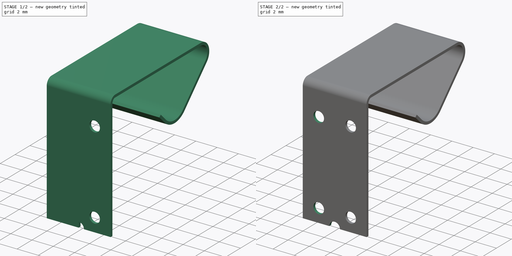
[diagram: build sequence overview — one tinted view per stage of 2, left to right]
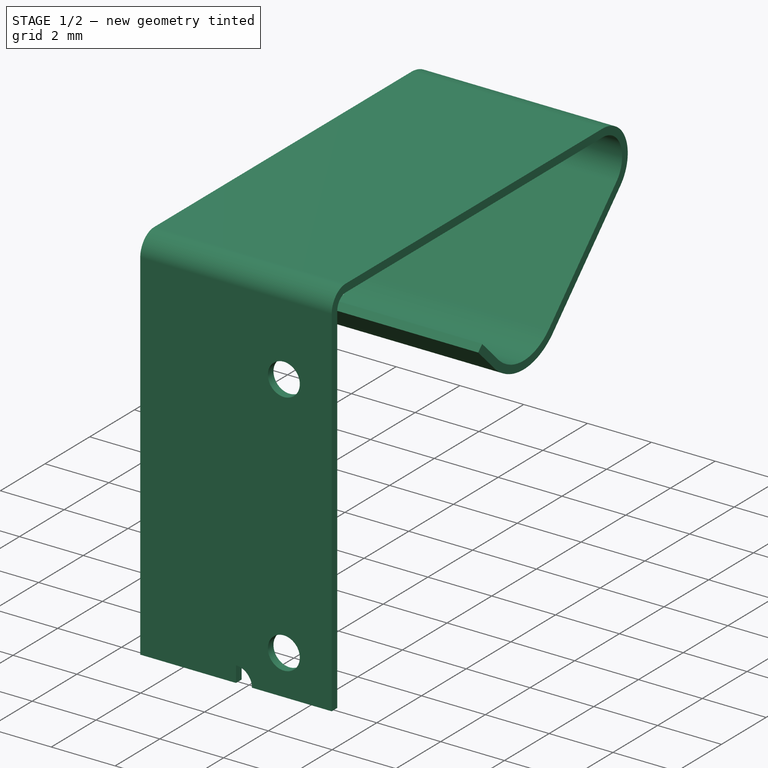
[diagram: stage 1 of 2 — iso view after this stage's code; geometry added in this stage tinted green]
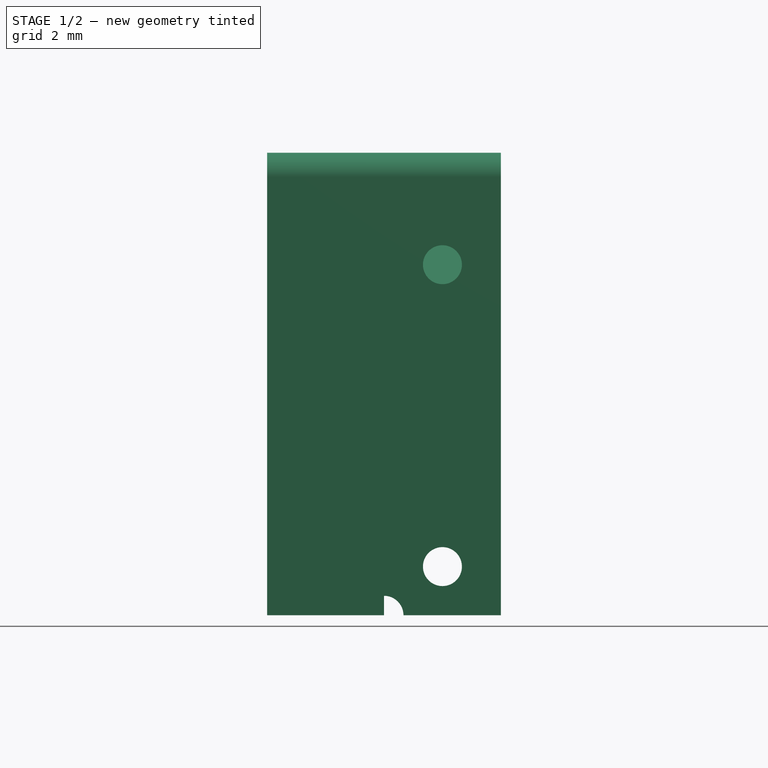
[diagram: stage 1 of 2 — front view after this stage's code; geometry added in this stage tinted green]
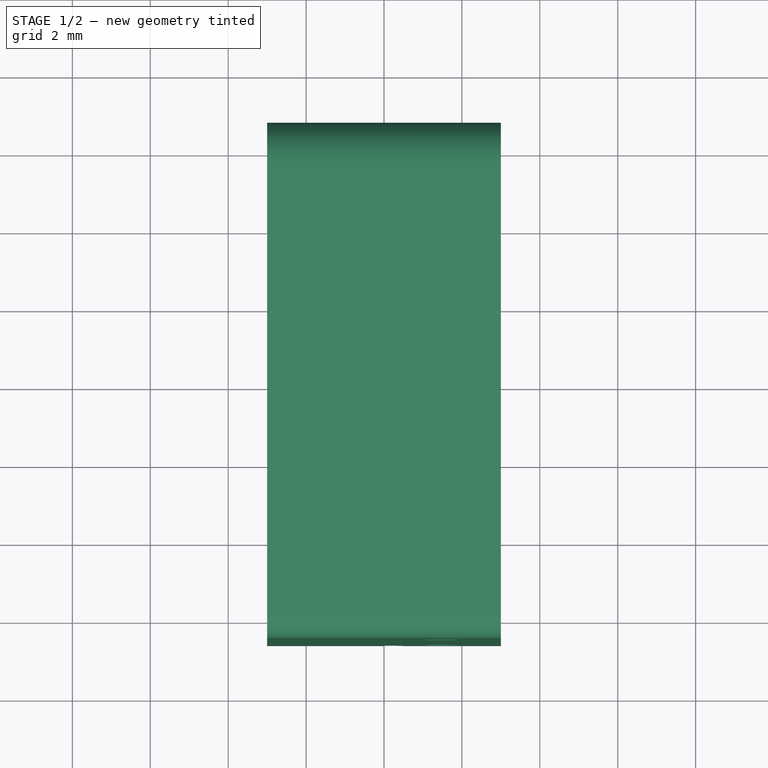
[diagram: stage 1 of 2 — top view after this stage's code; geometry added in this stage tinted green]
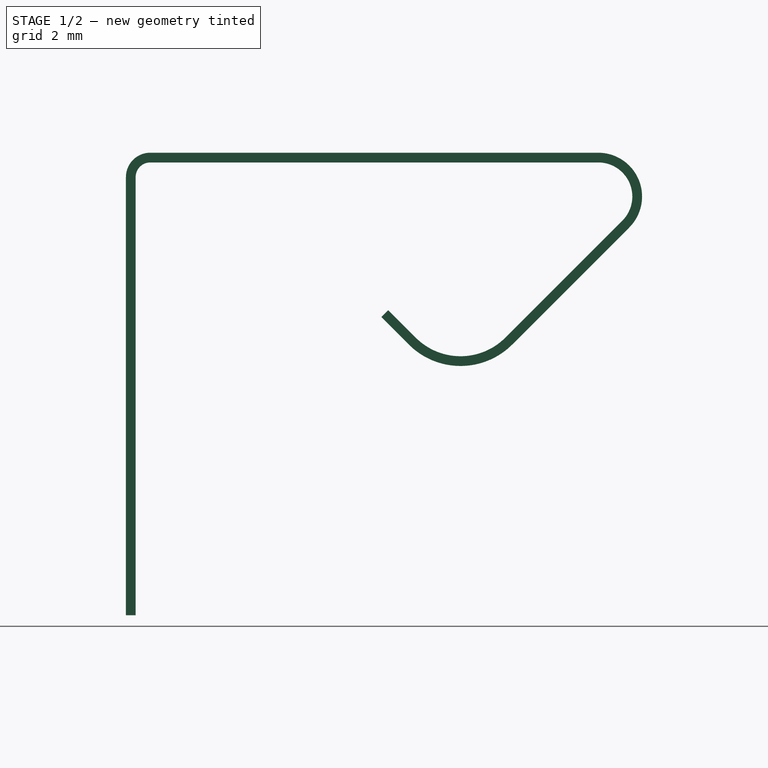
[diagram: stage 1 of 2 — right view after this stage's code; geometry added in this stage tinted green]
FCSTD DOCUMENT  (FreeCAD 0.20R29410 (Git))
Label: cell_1
License: All rights reserved
LicenseURL: http://en.wikipedia.org/wiki/All_rights_reserved
objects: Sketcher::SketchObject×3, PartDesign::Plane×2, PartDesign::AdditivePipe×1, PartDesign::Pocket×1, PartDesign::Mirrored×1, PartDesign::Body×1
note: 11 computed .brp shape members not serialized (recipe doc carries the construction recipe); baked Part::Feature solids carry a one-line shape summary decoded from their .brp

FEATURE [Sketcher::SketchObject] Sketch
  FullyConstrained = false
  MapMode = 5
  Placement = pos=(0,0,0) rot=(0.57735,0.57735,0.57735;2.0944rad)
  Support = -> [YZ_Plane]
  sketch-geometry (11):
    g0: ArcOfCircle CenterX=0 CenterY=0 CenterZ=0 NormalX=0 NormalY=0 NormalZ=1 AngleXU=0 Radius=1.75 StartAngle=3.92699 EndAngle=5.49779
    g1: LineSegment StartX=-1.23744 StartY=-1.23744 StartZ=0 EndX=-1.94454 EndY=-0.53033 EndZ=0
    g2: LineSegment StartX=1.23744 StartY=-1.23744 StartZ=0 EndX=4.24264 EndY=1.76777 EndZ=0
    g3: LineSegment StartX=-1.23744 StartY=-1.23744 StartZ=0 EndX=1.23744 EndY=-1.23744 EndZ=0
    g4: ArcOfCircle CenterX=3.53553 CenterY=2.47487 CenterZ=0 NormalX=0 NormalY=0 NormalZ=1 AngleXU=0 Radius=1 StartAngle=5.49779 EndAngle=7.85398
    g5: LineSegment StartX=-1.23744 StartY=-1.23744 StartZ=0 EndX=3.0052 EndY=3.0052 EndZ=0
    g6: LineSegment StartX=3.0052 StartY=3.0052 StartZ=0 EndX=3.53553 EndY=2.47487 EndZ=0
    g7: LineSegment StartX=3.53553 StartY=3.47487 StartZ=0 EndX=-7.96447 EndY=3.47487 EndZ=0
    g8: LineSegment StartX=4.53553 StartY=1.62961 StartZ=0 EndX=4.53553 EndY=3.62279 EndZ=0
    g9: LineSegment StartX=-8.46447 StartY=2.97487 StartZ=0 EndX=-8.46447 EndY=-8.27513 EndZ=0
    g10: ArcOfCircle CenterX=-7.96447 CenterY=2.97487 CenterZ=0 NormalX=0 NormalY=0 NormalZ=1 AngleXU=0 Radius=0.5 StartAngle=1.5708 EndAngle=3.14159
  constraints (27):
    c: Coincident(g0,g-1)
    c: Radius(g0) = 1.75
    c: Tangent(g0,g1) = 1.5708
    c: Tangent(g0,g2) = -1.5708
    c: Angle(g2,g1) = 1.5708
    c: Coincident(g3,g0)
    c: Coincident(g3,g0)
    c: Horizontal(g3)
    c: Distance(g1) = 1
    c: Tangent(g4,g2) = -1.5708
    c: Coincident(g5,g0)
    c: Perpendicular(g1,g5)
    c: Distance(g5) = 6
    c: Coincident(g6,g5)
    c: Coincident(g6,g4)
    c: Perpendicular(g5,g6)
    c: Tangent(g7,g4) = -1.5708
    c: Angle(g7,g2) = 0.785398
    c: Radius(g4) = 1
    c: Vertical(g8)
    c: Tangent(g8,g4)
    c: Vertical(g9)
    c: Tangent(g7,g10) = -1.5708
    c: Tangent(g9,g10) = -1.5708
    c: DistanceX(g9,g8) = 13
    c: Radius(g10) = 0.5
    c: DistanceY(g9,g7) = 11.75
FEATURE [PartDesign::Plane] DatumPlane
  AttachmentOffset = pos=(0,0,-8) rot=(0,0,1;0rad)
  Length = 60
  MapMode = 5
  Placement = pos=(0,0,-8) rot=(0,0,1;0rad)
  ResizeMode = 0
  Support = -> [XY_Plane]
  Width = 60
FEATURE [Sketcher::SketchObject] Sketch002
  ExternalGeometry = -> [Sketch]
  FullyConstrained = true
  MapMode = 5
  Placement = pos=(0,0,-8) rot=(0,0,1;0rad)
  Support = -> [DatumPlane]
  sketch-geometry (4):
    g0: LineSegment StartX=3 StartY=-8.33947 StartZ=0 EndX=-3 EndY=-8.33947 EndZ=0
    g1: LineSegment StartX=-3 StartY=-8.33947 StartZ=0 EndX=-3 EndY=-8.58947 EndZ=0
    g2: LineSegment StartX=-3 StartY=-8.58947 StartZ=0 EndX=3 EndY=-8.58947 EndZ=0
    g3: LineSegment StartX=3 StartY=-8.58947 StartZ=0 EndX=3 EndY=-8.33947 EndZ=0
  constraints (11):
    c: Coincident(g0,g1)
    c: Coincident(g1,g2)
    c: Coincident(g2,g3)
    c: Coincident(g3,g0)
    c: Horizontal(g0)
    c: Horizontal(g2)
    c: Vertical(g1)
    c: Vertical(g3)
    c: Symmetric(g1,g0,g-3)
    c: DistanceY(g3,g3) = 0.25
    c: DistanceX(g2,g2) = 6
FEATURE [PartDesign::AdditivePipe] AdditivePipe
  AuxilleryCurvelinear = true
  AuxillerySpineTangent = false
  Binormal = (0,0,0)
  Mode = 0
  Placement = pos=(0,0,-8) rot=(0,0,1;0rad)
  Profile = -> Sketch002
  Spine = -> Sketch
  SpineTangent = false
  Transformation = 0
  Transition = 0
FEATURE [PartDesign::Plane] DatumPlane001
  AttachmentOffset = pos=(0,0,8.5) rot=(0,0,1;0rad)
  Length = 60
  MapMode = 5
  Placement = pos=(0,-8.5,-1.9e-15) rot=(1,0,0;1.5708rad)
  ResizeMode = 0
  Support = -> [XZ_Plane]
  Width = 60
FEATURE [Sketcher::SketchObject] Sketch003
  ExternalGeometry = -> [AdditivePipe]
  FullyConstrained = true
  MapMode = 5
  Placement = pos=(0,-8.5,-1.9e-15) rot=(1,0,0;1.5708rad)
  Support = -> [DatumPlane001]
  sketch-geometry (5):
    g0: Circle CenterX=1.5 CenterY=-7.02513 CenterZ=0 NormalX=0 NormalY=0 NormalZ=1 AngleXU=0 Radius=0.5
    g1: Circle CenterX=1.5 CenterY=0.724874 CenterZ=0 NormalX=0 NormalY=0 NormalZ=1 AngleXU=0 Radius=0.5
    g2: LineSegment StartX=0 StartY=-8.27513 StartZ=0 EndX=0 EndY=-7.77513 EndZ=0
    g3: LineSegment StartX=0 StartY=-8.27513 StartZ=0 EndX=0.5 EndY=-8.27513 EndZ=0
    g4: ArcOfCircle CenterX=0 CenterY=-8.27513 CenterZ=0 NormalX=0 NormalY=0 NormalZ=1 AngleXU=0 Radius=0.5 StartAngle=0 EndAngle=1.5708
  constraints (15):
    c: DistanceY(g0,g1) = 7.75
    c: DistanceY(g-3,g0) = 1.25
    c: DistanceX(g0) = 1.5
    c: Vertical(g0,g1)
    c: Equal(g1,g0)
    c: Radius(g0) = 0.5
    c: PointOnObject(g2,g-3)
    c: PointOnObject(g2,g-2)
    c: Vertical(g2)
    c: Coincident(g2,g3)
    c: PointOnObject(g3,g-3)
    c: Coincident(g4,g2)
    c: Coincident(g4,g2)
    c: Coincident(g4,g3)
    c: Radius(g4) = 0.5
FEATURE [PartDesign::Pocket] Pocket
  BaseFeature = -> AdditivePipe
  Direction = (0,1,-2e-16)
  Length = 5
  Length2 = 5
  Placement = pos=(0,0,-8) rot=(0,0,1;0rad)
  Profile = -> Sketch003
  ReferenceAxis = -> Sketch003 [N_Axis]
  Reversed = true
  Type = 4
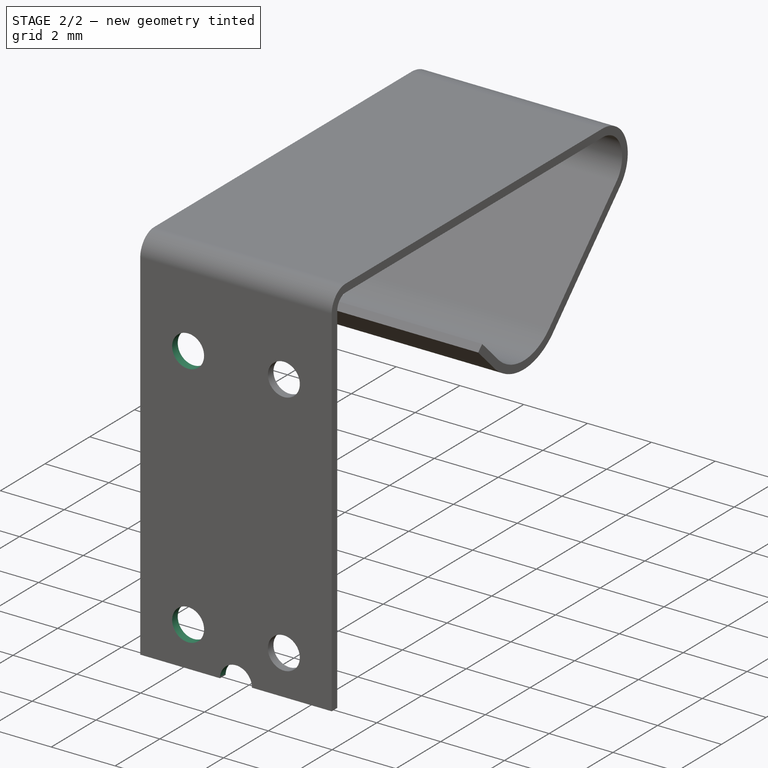
[diagram: stage 2 of 2 — iso view after this stage's code; geometry added in this stage tinted green]
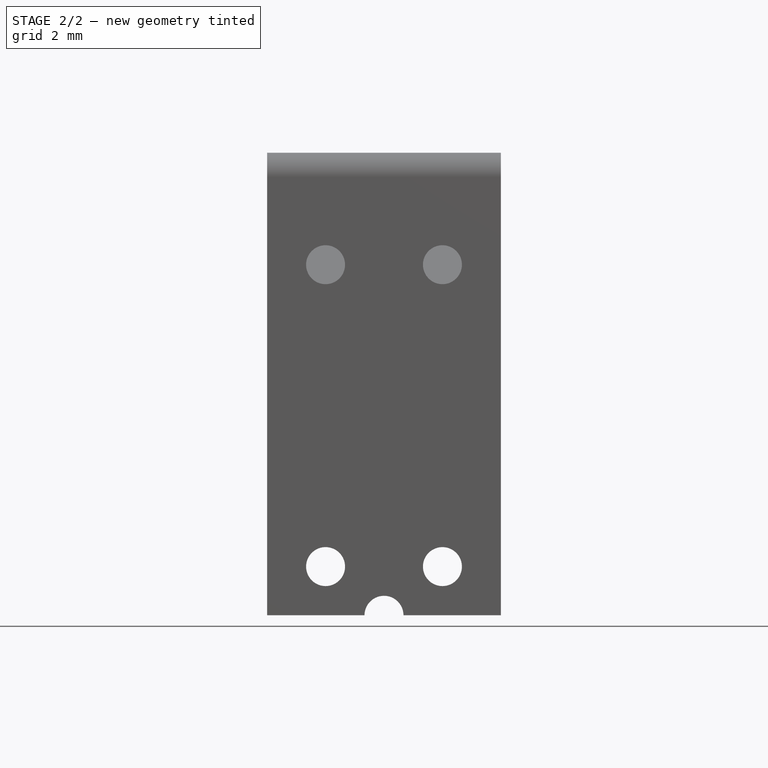
[diagram: stage 2 of 2 — front view after this stage's code; geometry added in this stage tinted green]
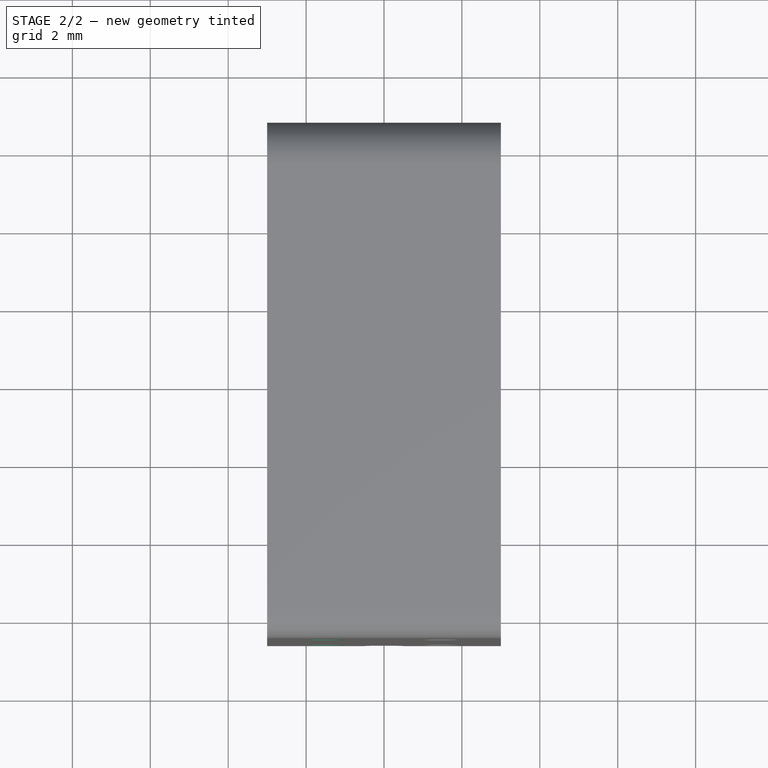
[diagram: stage 2 of 2 — top view after this stage's code; geometry added in this stage tinted green]
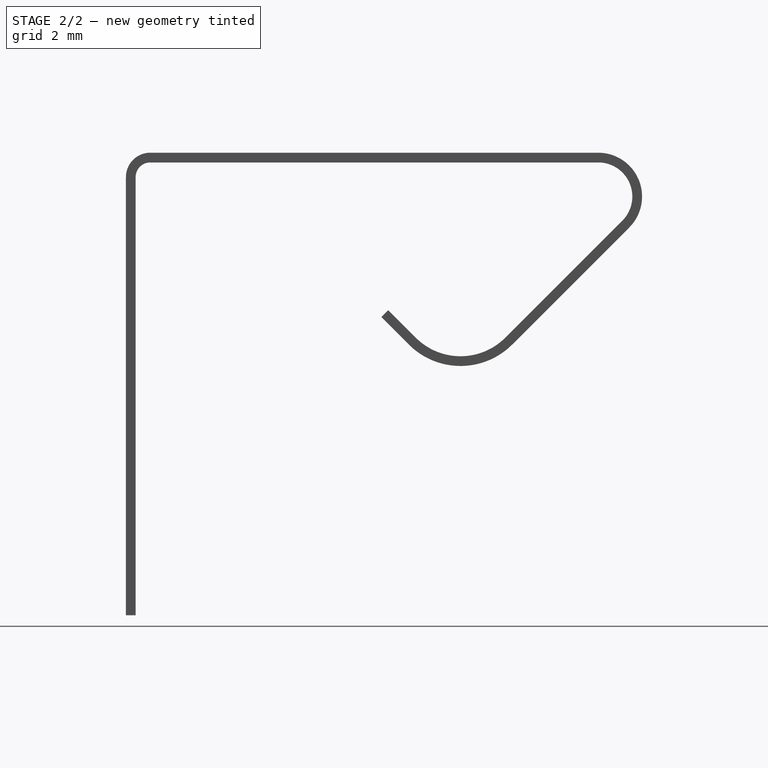
[diagram: stage 2 of 2 — right view after this stage's code; geometry added in this stage tinted green]
FEATURE [PartDesign::Mirrored] Mirrored
  BaseFeature = -> Pocket
  MirrorPlane = -> Sketch003 [V_Axis]
  Originals = -> [Pocket]
  Placement = pos=(0,0,-8) rot=(0,0,1;0rad)
FEATURE [PartDesign::Body] Body
  Group = -> [Sketch,DatumPlane,Sketch002,AdditivePipe,DatumPlane001,Sketch003,Pocket,Mirrored]
  Origin = -> Origin
  Tip = -> Mirrored
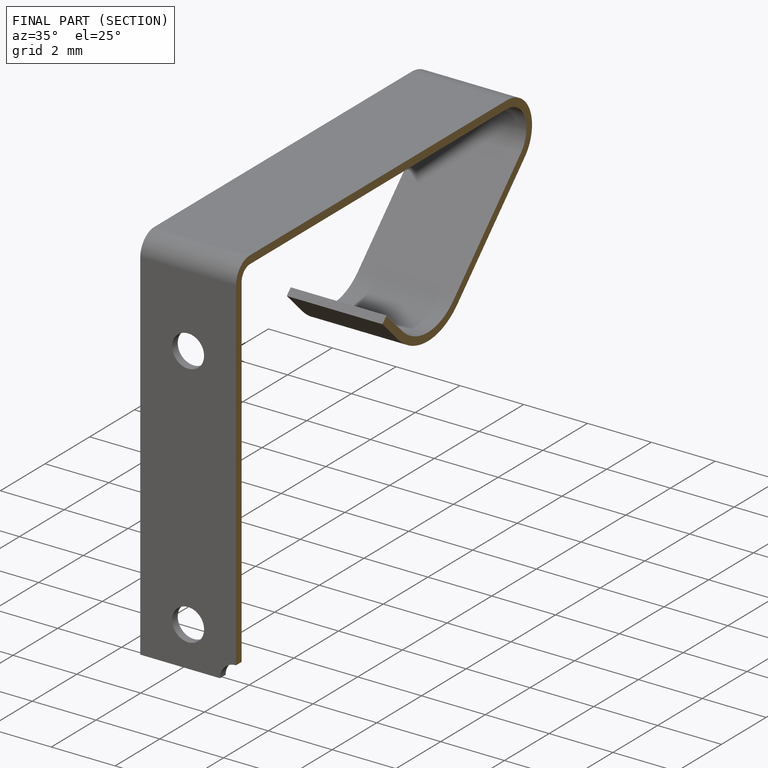
[diagram: finished part — half-section view (interior)]
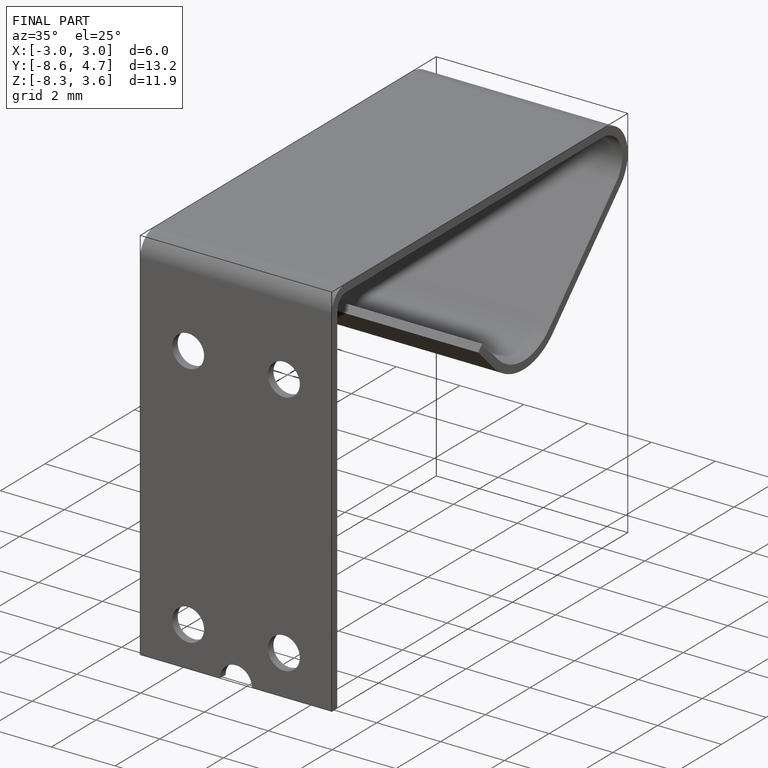
[diagram: finished part — iso view with bounding-box wireframe]
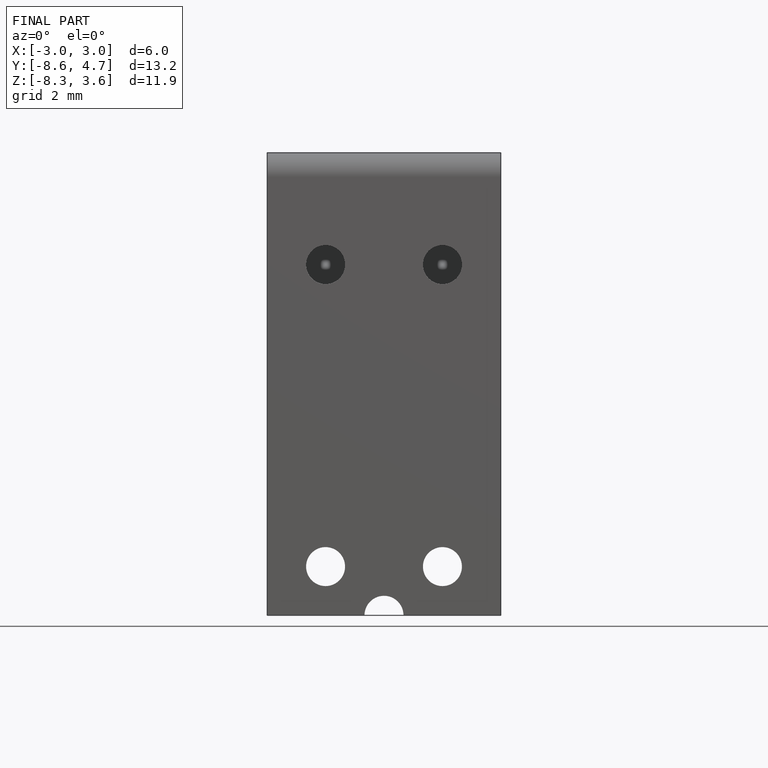
[diagram: finished part — front view with bounding-box wireframe]
